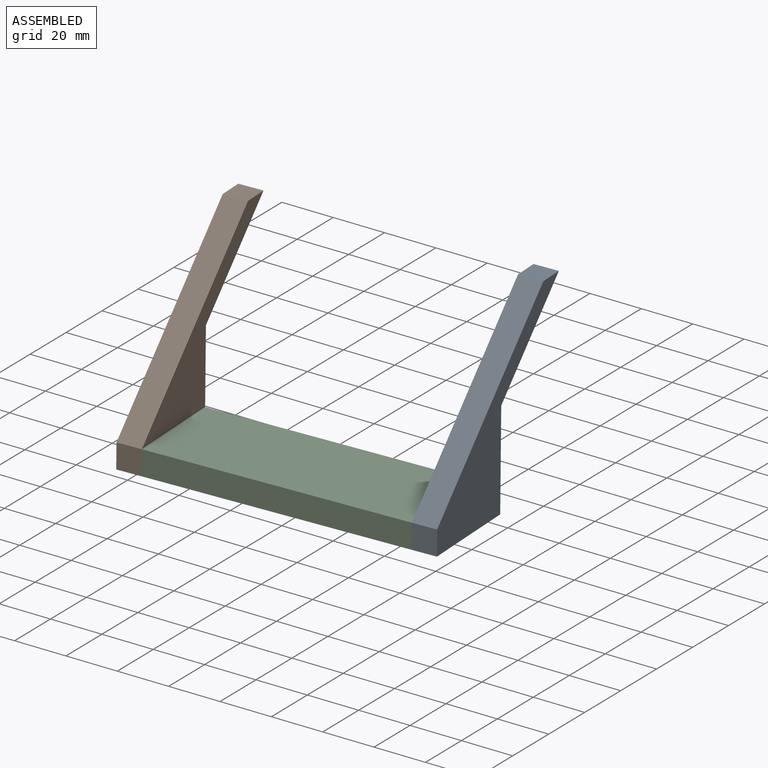
[diagram: assembled view]
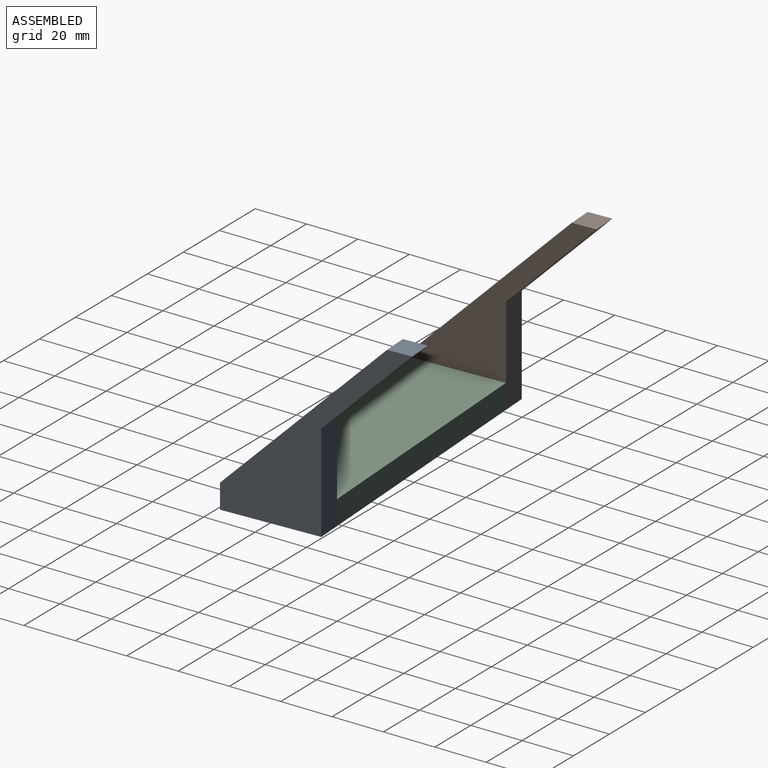
[diagram: assembled view, second angle]
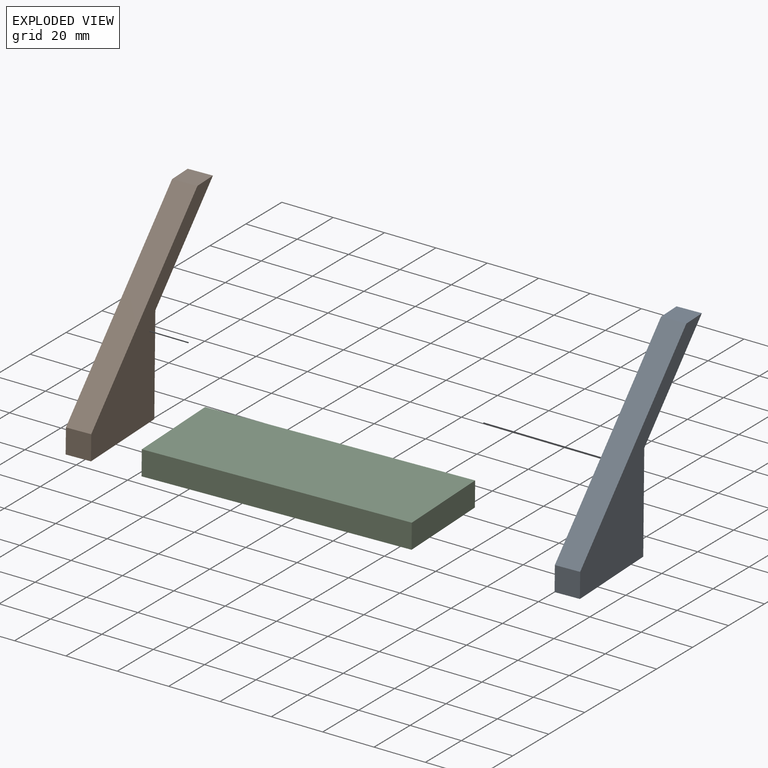
[diagram: exploded view]
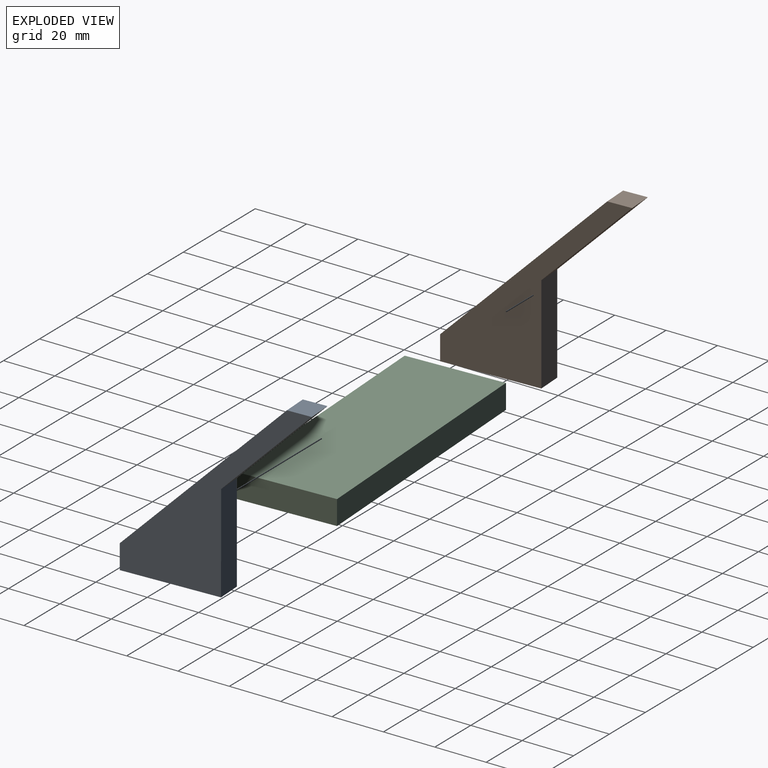
[diagram: exploded view, second angle]
ASSEMBLY  parts=3 mates=2
PART A: 8 faces, bbox 72.2x9.5x72.4 mm
  f0: plane 62.86x62.86mm, normal (-0.71,0,0.71), area 846.8mm2, adj f1,f5,f6,f7
  f1: plane 9.53x9.53mm, normal (-1,0,0), area 90.7mm2, adj f0,f2,f6,f7
  f2: plane 38.1x9.53mm, normal (0,0,-1), area 362.9mm2, adj f1,f3,f6,f7
  f3: plane 38.29x9.53mm, normal (1,0,0), area 364.7mm2, adj f2,f4,f6,f7
  f4: plane 34.1x34.1mm, normal (0.71,0,-0.71), area 459.3mm2, adj f3,f5,f6,f7
  f5: plane 9.53x9.34mm, normal (0,0,1), area 89mm2, adj f0,f4,f6,f7
  f6: plane 72.39x72.2mm, normal (0,-1,0), area 1363.6mm2, adj f0,f1,f2,f3,f4,f5
  f7: plane 72.39x72.2mm, normal (0,1,0), area 1363.6mm2, adj f0,f1,f2,f3,f4,f5
PART B: same geometry as A
PART C: 6 faces, bbox 101.6x9.5x38.1 mm
  f0: plane 38.1x9.53mm, normal (-1,0,0), area 362.9mm2, adj f1,f3,f4,f5
  f1: plane 101.6x9.53mm, normal (0,0,-1), area 967.7mm2, adj f0,f2,f4,f5
  f2: plane 38.1x9.53mm, normal (1,0,0), area 362.9mm2, adj f1,f3,f4,f5
  f3: plane 101.6x9.53mm, normal (0,0,1), area 967.7mm2, adj f0,f2,f4,f5
  f4: plane 101.6x38.1mm, normal (0,-1,0), area 3871mm2, adj f0,f1,f2,f3
  f5: plane 101.6x38.1mm, normal (0,1,0), area 3871mm2, adj f0,f1,f2,f3
PLACE A rot(axis=(0,0.01,1),93deg) t=(87.88,4,-20.94)mm
PLACE B rot(axis=(0,0.01,1),93deg) t=(-23.1,-1.76,-20.15)mm
PLACE C rot(axis=(-1,-0.02,0.03),90.3deg) t=(-15.63,36.74,-29.93)mm
MATE planar B.f6 <-> C.f0  axis (1,0.05,-0.01) through (-14.64,17.71,-29.83)mm
MATE planar A.f7 <-> C.f2  axis (-1,-0.05,0.01) through (86.82,22.98,-30.56)mm
